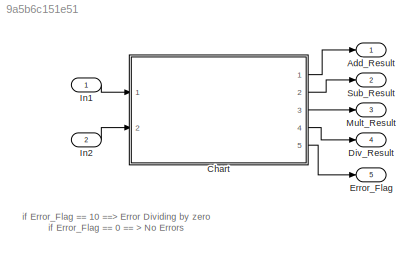
MODEL slx_9a5b6c151e51
KIND model
CONFIG AbsTol = auto
CONFIG EnableMultiTasking = off
CONFIG FixedStep = auto
CONFIG MaxStep = auto
CONFIG MinStep = auto
CONFIG RelTol = 1e-3
CONFIG SampleTimeConstraint = Unconstrained
CONFIG Solver = FixedStepDiscrete
CONFIG SolverName = FixedStepDiscrete
CONFIG StartTime = 0.0
CONFIG StopTime = 10.0
BLOCK [Outport] Add_Result
  IconDisplay = Port number
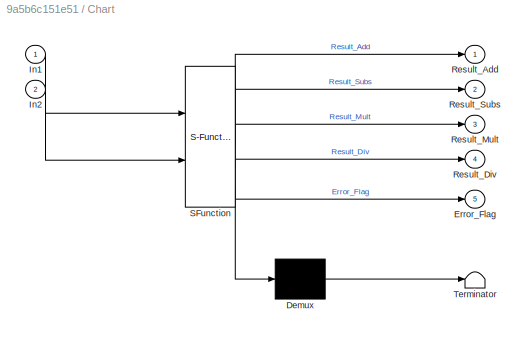
BLOCK [SubSystem] Chart
  ErrorFcn = Stateflow.Translate.translate
  PermitHierarchicalResolution = ExplicitOnly
  Ports = [2, 5]
  RequestExecContextInheritance = off
  SFBlockType = Chart
  TreatAsAtomicUnit = on
BLOCK [Demux] Chart/ Demux 
  Outputs = 1
  Ports = [1, 1]
BLOCK [S-Function] Chart/ SFunction 
  EnableBusSupport = on
  FunctionName = sf_sfun
  PortCounts = [2 6]
  Ports = [2, 6]
  SFcnIsStateOwnerBlock = off
  SFunctionDeploymentMode = off
  Tag = Stateflow S-Function Calculator_graphical_function 3
BLOCK [Terminator] Chart/ Terminator 
BLOCK [Outport] Chart/Error_Flag
  IconDisplay = Port number
  Port = 5
BLOCK [Inport] Chart/In1
  IconDisplay = Port number
BLOCK [Inport] Chart/In2
  IconDisplay = Port number
  Port = 2
BLOCK [Outport] Chart/Result_Add
  IconDisplay = Port number
BLOCK [Outport] Chart/Result_Div
  IconDisplay = Port number
  Port = 4
BLOCK [Outport] Chart/Result_Mult
  IconDisplay = Port number
  Port = 3
BLOCK [Outport] Chart/Result_Subs
  IconDisplay = Port number
  Port = 2
BLOCK [Outport] Div_Result
  IconDisplay = Port number
  Port = 4
BLOCK [Outport] Error_Flag
  IconDisplay = Port number
  Port = 5
BLOCK [Inport] In1
  IconDisplay = Port number
BLOCK [Inport] In2
  IconDisplay = Port number
  Port = 2
BLOCK [Outport] Mult_Result
  IconDisplay = Port number
  Port = 3
BLOCK [Outport] Sub_Result
  IconDisplay = Port number
  Port = 2
ANNOTATION (root): if Error_Flag == 10 ==> Error Dividing by zero if Error_Flag == 0 == > No Errors
LINE Chart:1 -> Add_Result:1
LINE Chart:2 -> Sub_Result:1
LINE Chart:3 -> Mult_Result:1
LINE Chart:4 -> Div_Result:1
LINE Chart:5 -> Error_Flag:1
LINE In1:1 -> Chart:1
LINE In2:1 -> Chart:2
CHART Chart states=4 transitions=10
  STATE_LABEL 'Add(In1,In2)'
  STATE_LABEL '{Result_Add = In1+In2;}'
  STATE_LABEL 'Sub(In1,In2)'
  STATE_LABEL '{Result_Subs = In1-In2;}'
  STATE_LABEL 'Mult(In1,In2)'
  STATE_LABEL '{Result_Mult = In1*In2;}'
  STATE_LABEL 'Div(In1,In2)'
  STATE_LABEL '/* Division */\n'
  STATE_LABEL '[In2!=0]'
  STATE_LABEL '{Error_Flag=10;}'
  STATE_LABEL '{Result_Div = In1/In2;}'
